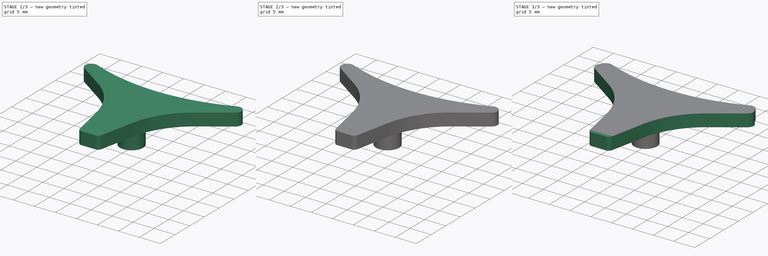
[diagram: build sequence overview — one tinted view per stage of 3, left to right]
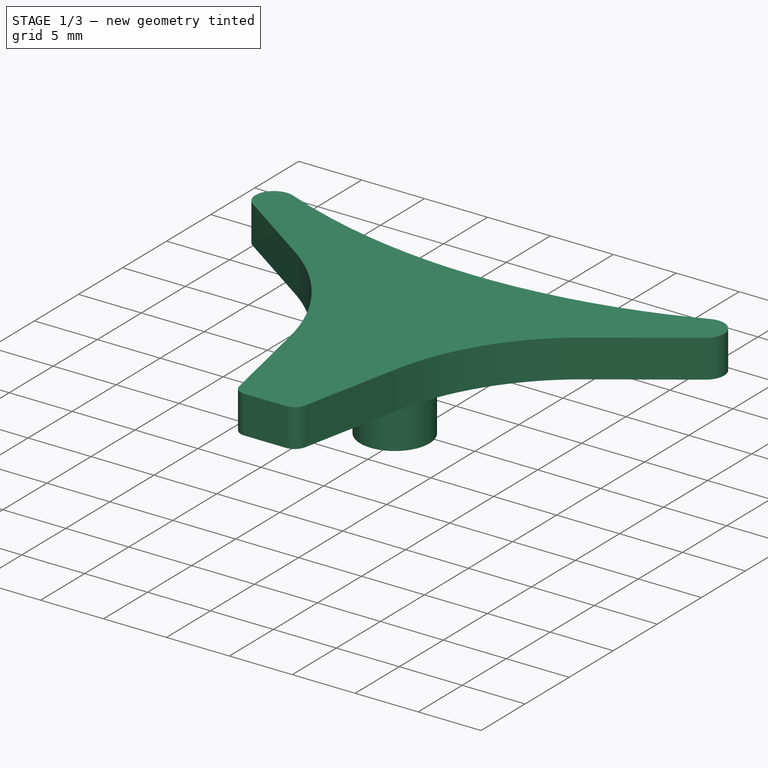
[diagram: stage 1 of 3 — iso view after this stage's code; geometry added in this stage tinted green]
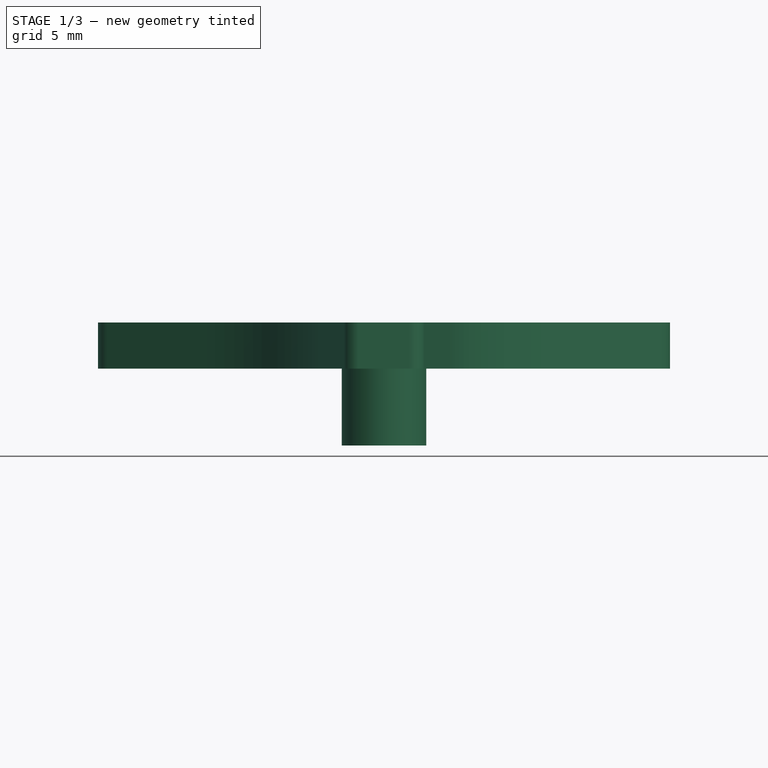
[diagram: stage 1 of 3 — front view after this stage's code; geometry added in this stage tinted green]
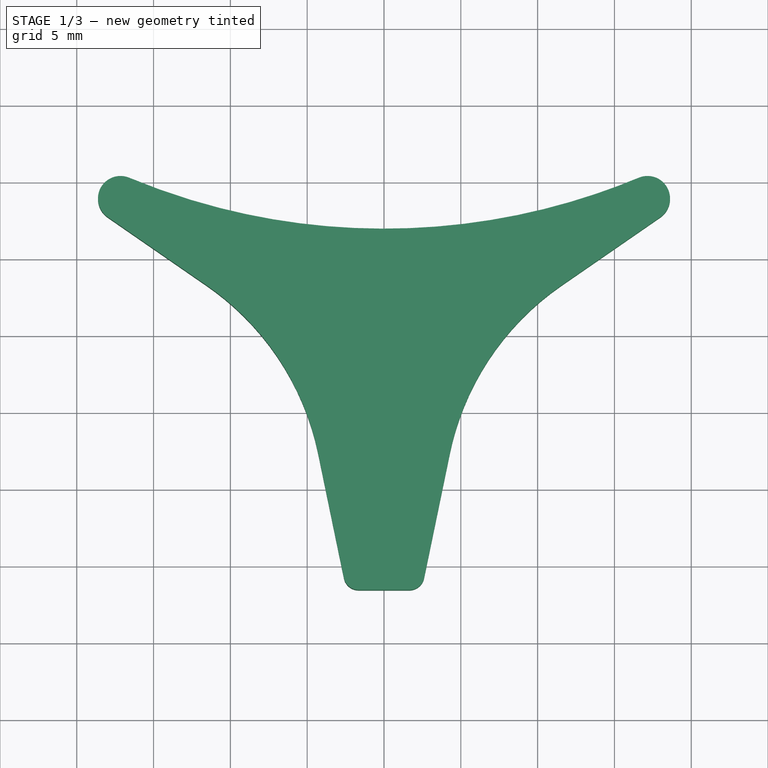
[diagram: stage 1 of 3 — top view after this stage's code; geometry added in this stage tinted green]
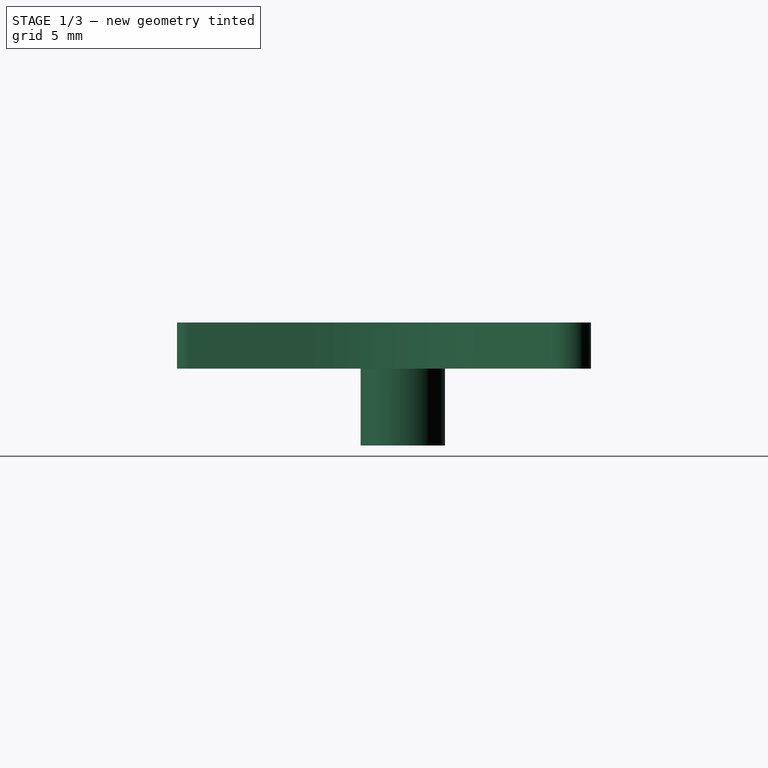
[diagram: stage 1 of 3 — right view after this stage's code; geometry added in this stage tinted green]
FCSTD DOCUMENT  (FreeCAD 1.0R39319 (Git))
Label: Stack_Module_Cover_LogoTee
License: All rights reserved
LicenseURL: https://en.wikipedia.org/wiki/All_rights_reserved
objects: Sketcher::SketchObject×3, PartDesign::Pad×2, PartDesign::Body×2, Part::Scale×1, PartDesign::FeatureBase×1, PartDesign::Pocket×1, PartDesign::Chamfer×1, PartDesign::CoordinateSystem×1, App::Part×1
note: 24 computed .brp shape members not serialized (recipe doc carries the construction recipe); baked Part::Feature solids carry a one-line shape summary decoded from their .brp

FEATURE [PartDesign::Body] Body  label="Stack_Module_Cover_LogoTee001"
  AllowCompound = false
  Group = -> [Sketch,Pad]
  Origin = -> Origin001
  Tip = -> Pad
FEATURE [Part::Scale] Scale
  Base = -> Body
  Uniform = false
  UniformScale = 1
  XScale = 0.98
  YScale = 0.98
  ZScale = 1
FEATURE [PartDesign::FeatureBase] BaseFeature
  BaseFeature = -> Scale
  Suppressed = false
FEATURE [Sketcher::SketchObject] Sketch001
  ArcFitTolerance = 1e-06
  AttachmentSupport = -> [BaseFeature]
  ExternalGeometry = -> [BaseFeature]
  FullyConstrained = true
  MakeInternals = false
  MapMode = 5
  Placement = pos=(0,0,0) rot=(1,0,0;3.14159rad)
  sketch-geometry (1):
    g0: Circle CenterX=0 CenterY=51.94 CenterZ=0 NormalX=0 NormalY=0 NormalZ=1 AngleXU=0 Radius=2.75
  constraints (3):
    c: PointOnObject(g0,g-2)
    c: Diameter(g0) = 5.5
    c: DistanceY(g0,g-3) = 14.7
FEATURE [PartDesign::Pad] Pad001
  BaseFeature = -> BaseFeature
  Direction = (0,0,-1)
  Length = 5
  Length2 = 10
  Profile = -> Sketch001
  ReferenceAxis = -> Sketch001 [N_Axis]
  Refine = true
  Suppressed = false
  Type = 0
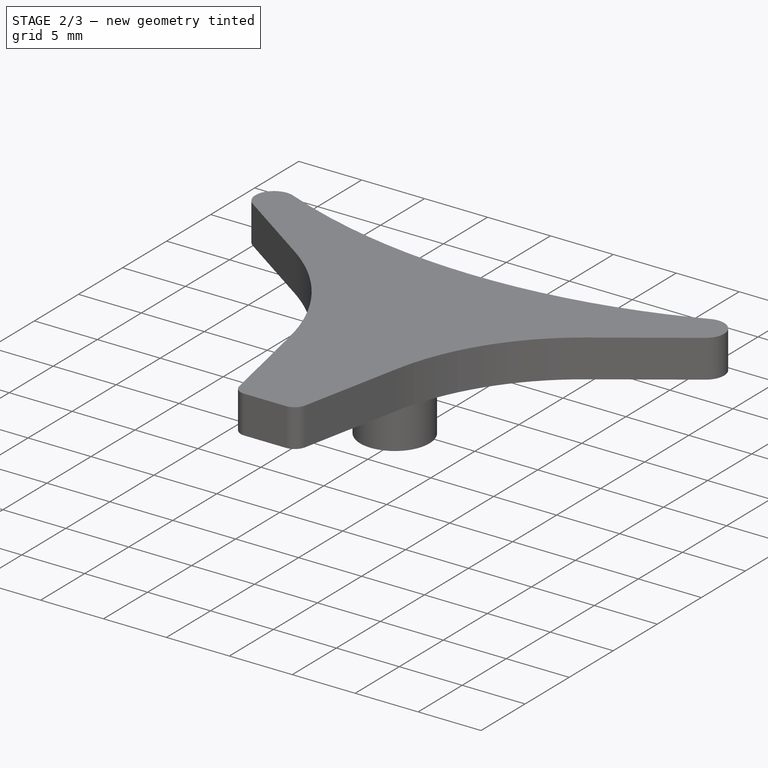
[diagram: stage 2 of 3 — iso view after this stage's code; geometry added in this stage tinted green]
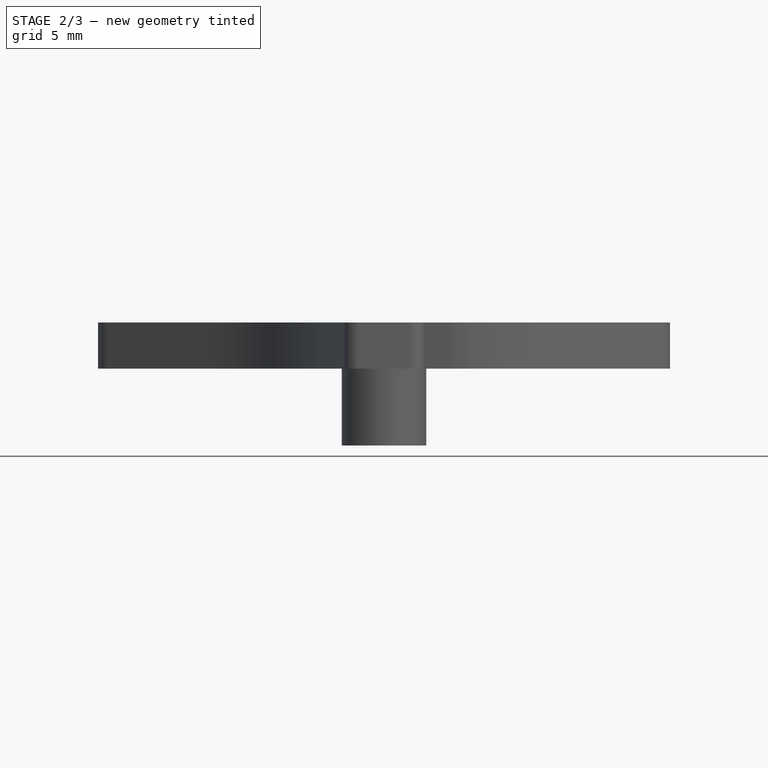
[diagram: stage 2 of 3 — front view after this stage's code; geometry added in this stage tinted green]
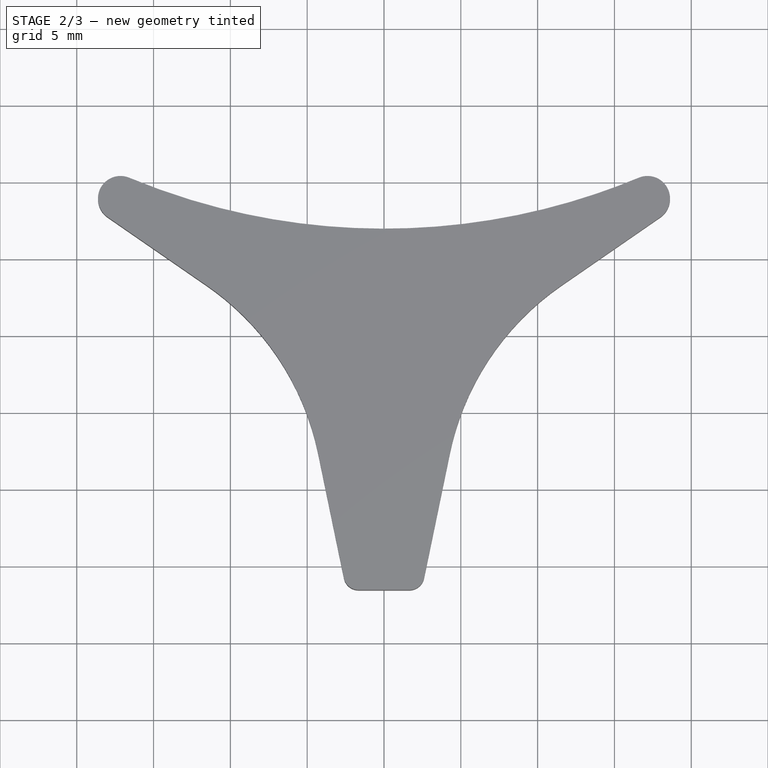
[diagram: stage 2 of 3 — top view after this stage's code; geometry added in this stage tinted green]
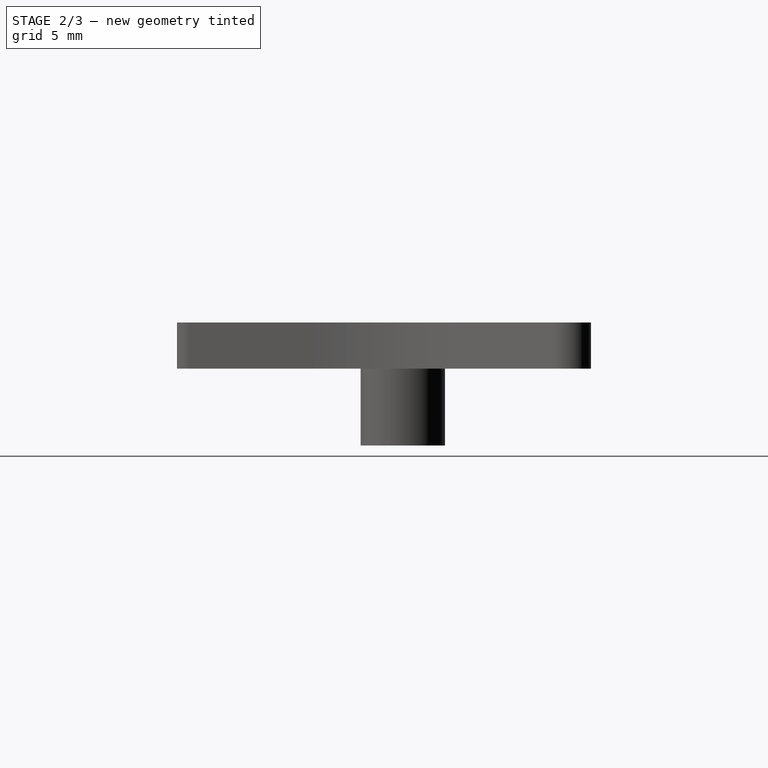
[diagram: stage 2 of 3 — right view after this stage's code; geometry added in this stage tinted green]
FEATURE [Sketcher::SketchObject] Sketch002
  ArcFitTolerance = 1e-06
  AttachmentSupport = -> [Pad001]
  ExternalGeometry = -> [Pad001]
  FullyConstrained = true
  MakeInternals = false
  MapMode = 5
  Placement = pos=(0,0,-5) rot=(1,0,0;3.14159rad)
  sketch-geometry (1):
    g0: Circle CenterX=0 CenterY=51.94 CenterZ=0 NormalX=0 NormalY=0 NormalZ=1 AngleXU=0 Radius=1.25
  constraints (2):
    c: Coincident(g0,g-3)
    c: Diameter(g0) = 2.5
FEATURE [PartDesign::Pocket] Pocket
  BaseFeature = -> Pad001
  Direction = (0,0,1)
  Length = 7
  Length2 = 5
  Profile = -> Sketch002
  ReferenceAxis = -> Sketch002 [N_Axis]
  Refine = true
  Suppressed = false
  Type = 0
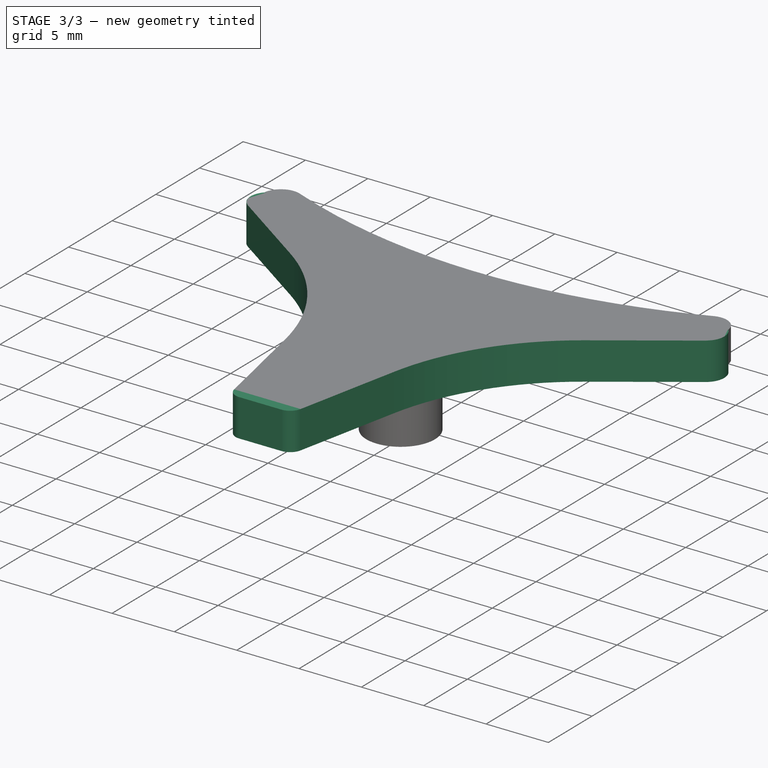
[diagram: stage 3 of 3 — iso view after this stage's code; geometry added in this stage tinted green]
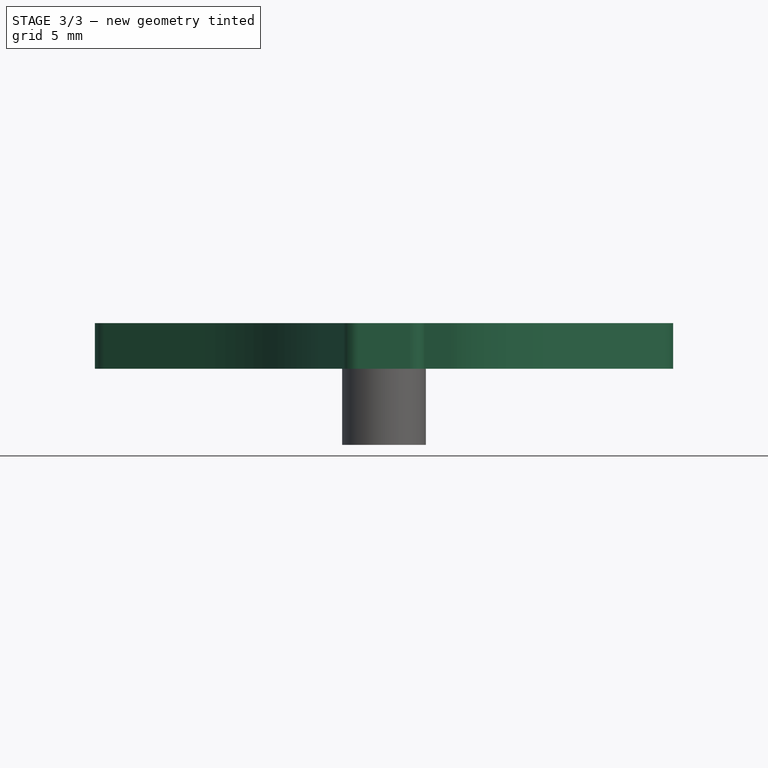
[diagram: stage 3 of 3 — front view after this stage's code; geometry added in this stage tinted green]
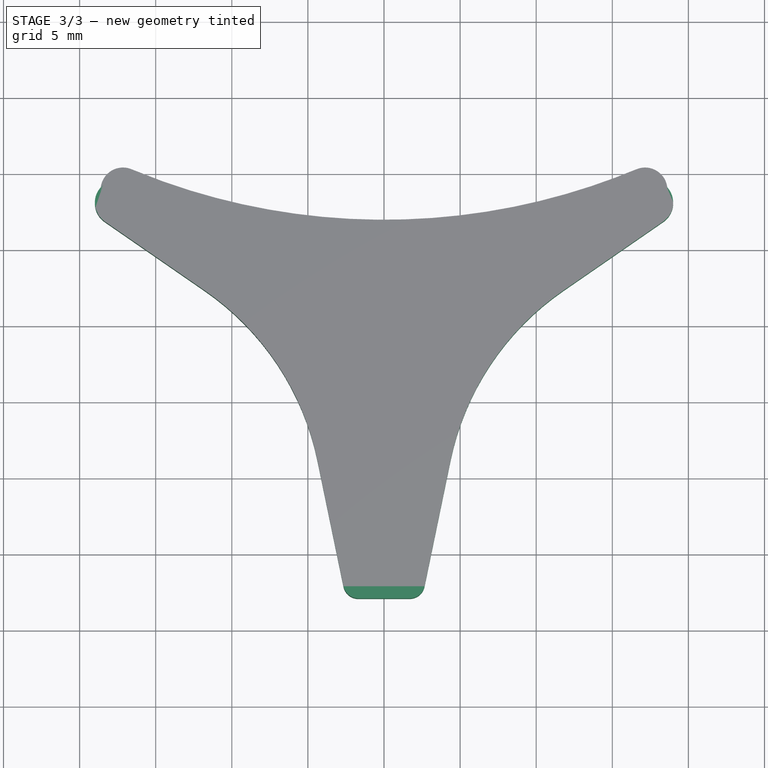
[diagram: stage 3 of 3 — top view after this stage's code; geometry added in this stage tinted green]
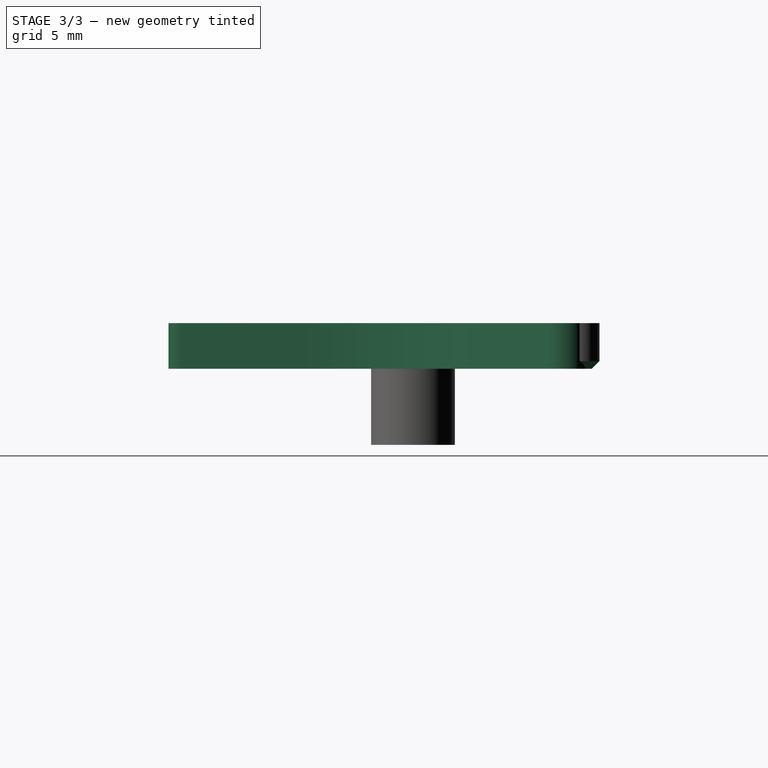
[diagram: stage 3 of 3 — right view after this stage's code; geometry added in this stage tinted green]
FEATURE [Sketcher::SketchObject] Sketch
  ArcFitTolerance = 1e-06
  AttachmentSupport = -> [XY_Plane001]
  FullyConstrained = false
  MakeInternals = false
  MapMode = 5
  sketch-geometry (15):
    g0: ArcOfCircle CenterX=0 CenterY=0 CenterZ=0 NormalX=0 NormalY=0 NormalZ=1 AngleXU=0 Radius=44 StartAngle=4.3176 EndAngle=5.10718
    g1: ArcOfCircle CenterX=22 CenterY=-62.5913 CenterZ=0 NormalX=0 NormalY=0 NormalZ=1 AngleXU=0 Radius=18 StartAngle=2.17527 EndAngle=2.9376
    g2: ArcOfCircle CenterX=-22 CenterY=-62.5913 CenterZ=0 NormalX=0 NormalY=0 NormalZ=1 AngleXU=0 Radius=18 StartAngle=0.20399 EndAngle=0.966323
    g3: LineSegment StartX=-4.37321 StartY=-58.9449 StartZ=0 EndX=-2.66496 EndY=-67.2026 EndZ=0
    g4: LineSegment StartX=-1.68569 StartY=-68 StartZ=0 EndX=1.68569 EndY=-68 EndZ=0
    g5: LineSegment StartX=2.66496 StartY=-67.2026 StartZ=0 EndX=4.37321 EndY=-58.9449 EndZ=0
    g6: LineSegment [constr] StartX=0 StartY=-68 StartZ=0 EndX=0 EndY=-44 EndZ=0
    g7: ArcOfCircle CenterX=1.68569 CenterY=-67 CenterZ=0 NormalX=0 NormalY=0 NormalZ=1 AngleXU=0 Radius=1 StartAngle=4.71239 EndAngle=6.0792
    g8: GeomPoint [constr] X=2.5 Y=-68 Z=0
    g9: ArcOfCircle CenterX=-1.68569 CenterY=-67 CenterZ=0 NormalX=0 NormalY=0 NormalZ=1 AngleXU=0 Radius=1 StartAngle=3.34558 EndAngle=4.71239
    g10: GeomPoint [constr] X=-2.5 Y=-68 Z=0
    g11: LineSegment StartX=11.7701 StartY=-47.7808 StartZ=0 EndX=18.3525 EndY=-43.2342 EndZ=0
    g12: ArcOfCircle CenterX=17.5 CenterY=-42 CenterZ=0 NormalX=0 NormalY=0 NormalZ=1 AngleXU=0 Radius=1.5 StartAngle=5.31686 EndAngle=8.24877
    g13: LineSegment StartX=-11.7701 StartY=-47.7808 StartZ=0 EndX=-18.3525 EndY=-43.2342 EndZ=0
    g14: ArcOfCircle CenterX=-17.5 CenterY=-42 CenterZ=0 NormalX=0 NormalY=0 NormalZ=1 AngleXU=0 Radius=1.5 StartAngle=1.17601 EndAngle=4.10792
  constraints (35):
    c: Tangent(g2,g3) = 1.5708
    c: Horizontal(g4)
    c: Tangent(g5,g1) = 1.5708
    c: Symmetric(g10,g8,g6)
    c: PointOnObject(g6,g0)
    c: Vertical(g6)
    c: Radius(g0) = 44
    c: Distance(g10,g8) = 5
    c: Radius(g2) = 18
    c: Radius(g1) = 18
    c: Distance(g2,g6) = 22
    c: Distance(g1,g6) = 22
    c: PointOnObject(g8,g4)
    c: PointOnObject(g8,g5)
    c: Tangent(g4,g7) = -1.5708
    c: Tangent(g5,g7) = -1.5708
    c: PointOnObject(g10,g3)
    c: PointOnObject(g10,g4)
    c: Tangent(g3,g9) = -1.5708
    c: Tangent(g4,g9) = -1.5708
    c: Radius(g9) = 1
    c: Radius(g7) = 1
    c: PointOnObject(g-1,g6)
    c: Tangent(g12,g0) = 1.5708
    c: Tangent(g12,g11) = -1.5708
    c: Tangent(g11,g1) = 1.5708
    c: Radius(g12) = 1.5
    c: Distance(g11,g11) = 8
    c: Distance(g12,g6) = 17.5
    c: Tangent(g13,g2) = -1.5708
    c: Tangent(g14,g0) = 1.5708
    c: Tangent(g14,g13) = 1.5708
    c: Radius(g14) = 1.5
    c: Distance(g13,g13) = 8
    c: Distance(g14,g6) = 17.5
FEATURE [PartDesign::Pad] Pad
  Direction = (0,0,1)
  Length = 3
  Length2 = 10
  Profile = -> Sketch
  ReferenceAxis = -> Sketch [N_Axis]
  Refine = true
  Suppressed = false
  Type = 0
FEATURE [PartDesign::Chamfer] Chamfer
  Angle = 45
  Base = -> Pocket [Edge16]
  BaseFeature = -> Pocket
  ChamferType = 0
  FlipDirection = false
  Refine = true
  Size = 0.5
  Size2 = 1
  SupportTransform = false
  Suppressed = false
  UseAllEdges = false
FEATURE [PartDesign::Body] Body001  label="Body"
  AllowCompound = false
  BaseFeature = -> Scale
  Group = -> [BaseFeature,Sketch001,Pad001,Sketch002,Pocket,Chamfer]
  Origin = -> Origin002
  Tip = -> Chamfer
FEATURE [PartDesign::CoordinateSystem] LCS_1
  AttacherType = Attacher::AttachEngine3D
  AttachmentSupport = -> [Chamfer]
  MapMode = 11
  Placement = pos=(0,-51.94,0) rot=(0.707107,-0.707107,0;3.14159rad)
FEATURE [App::Part] Part  label="Stack_Module_Cover_LogoTee"
  Group = -> [Scale,Body001,Body,LCS_1]
  Origin = -> Origin
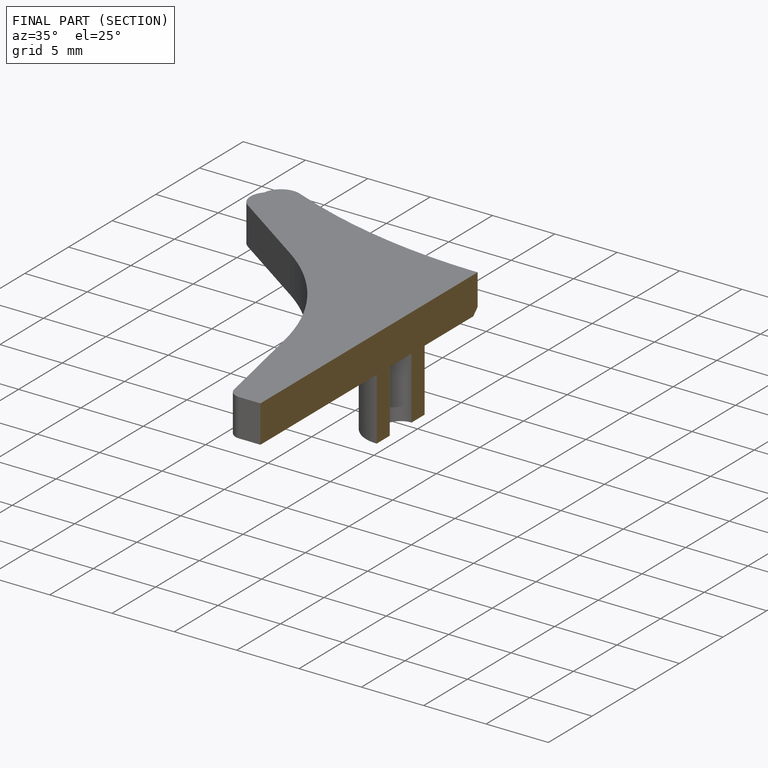
[diagram: finished part — half-section view (interior)]
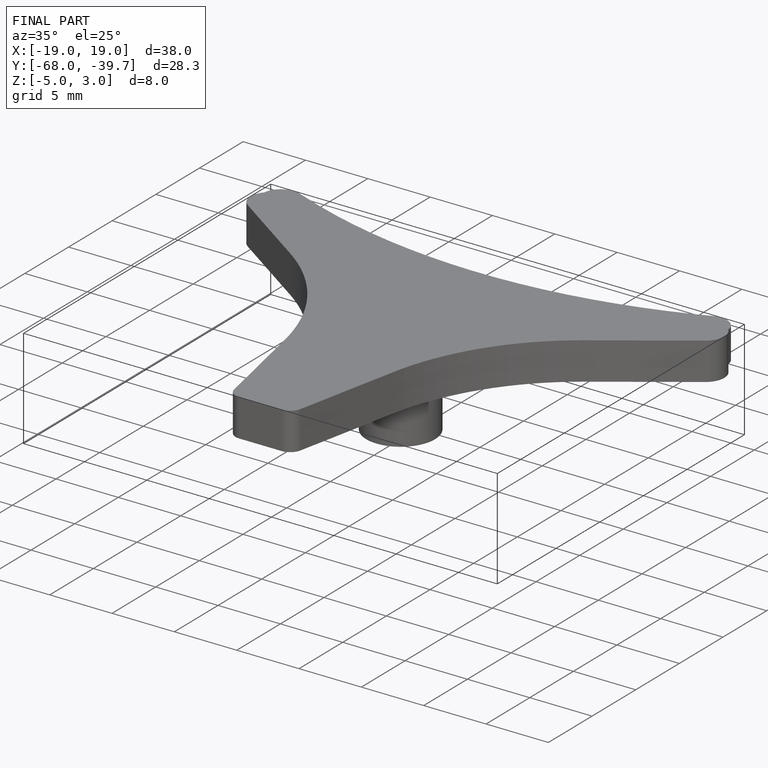
[diagram: finished part — iso view with bounding-box wireframe]
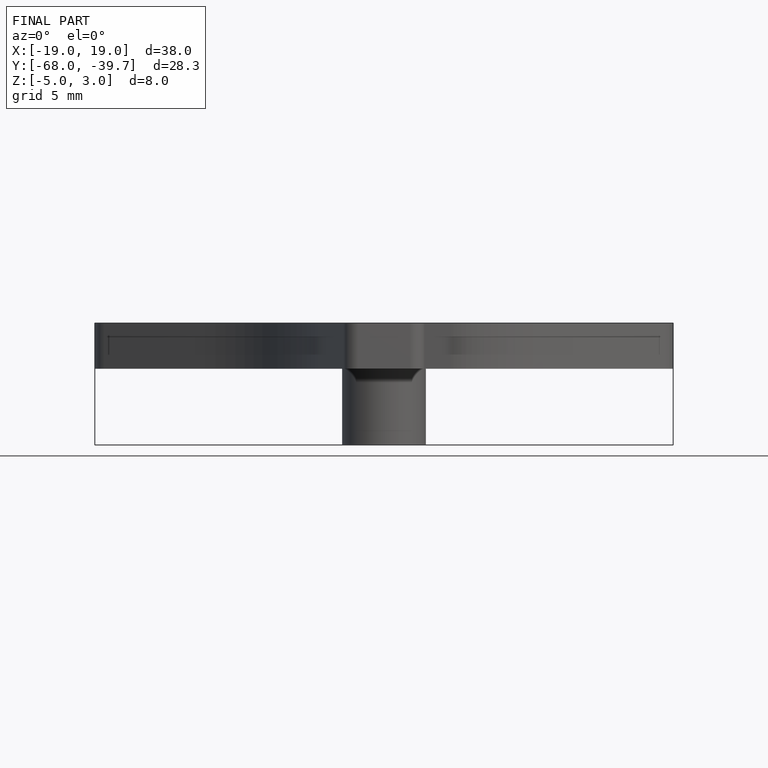
[diagram: finished part — front view with bounding-box wireframe]
